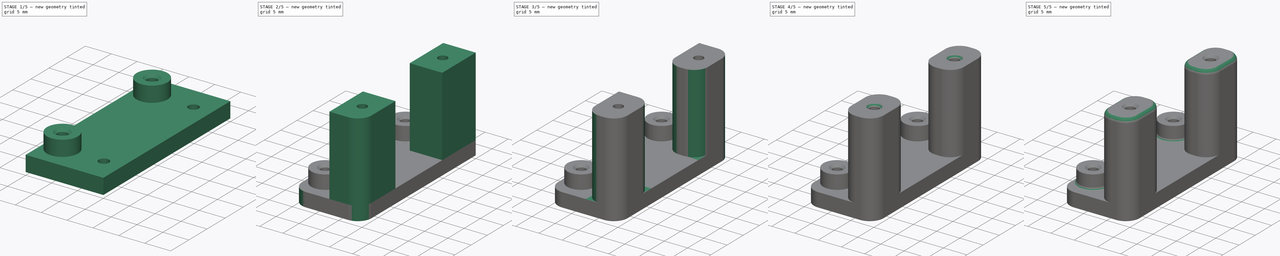
[diagram: build sequence overview — one tinted view per stage of 5, left to right]
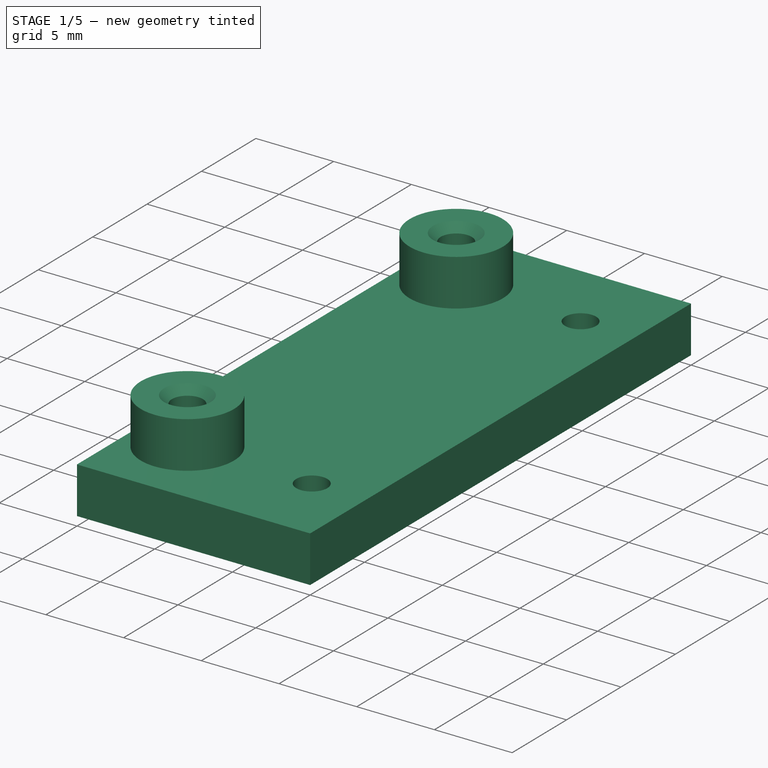
[diagram: stage 1 of 5 — iso view after this stage's code; geometry added in this stage tinted green]
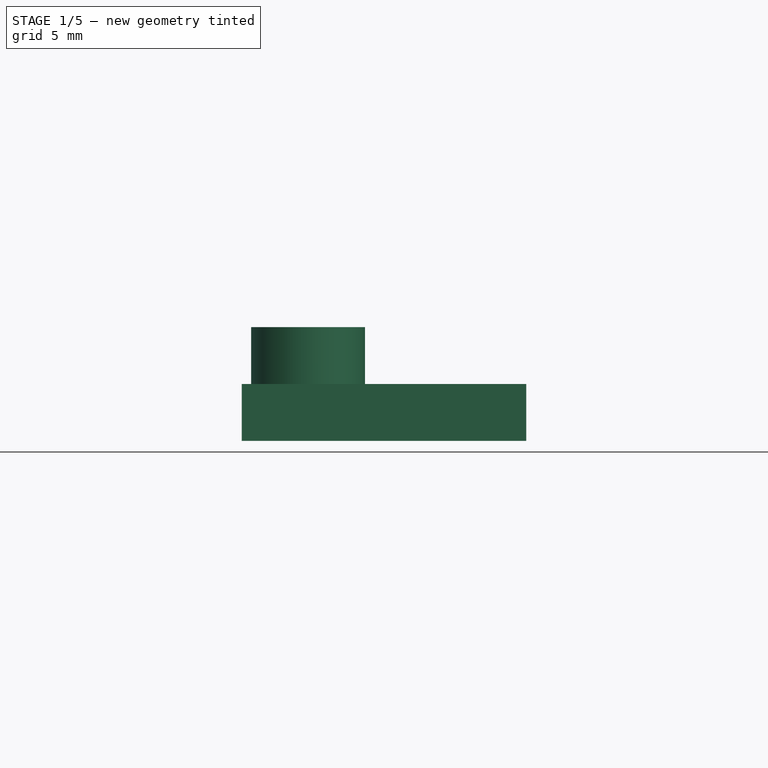
[diagram: stage 1 of 5 — front view after this stage's code; geometry added in this stage tinted green]
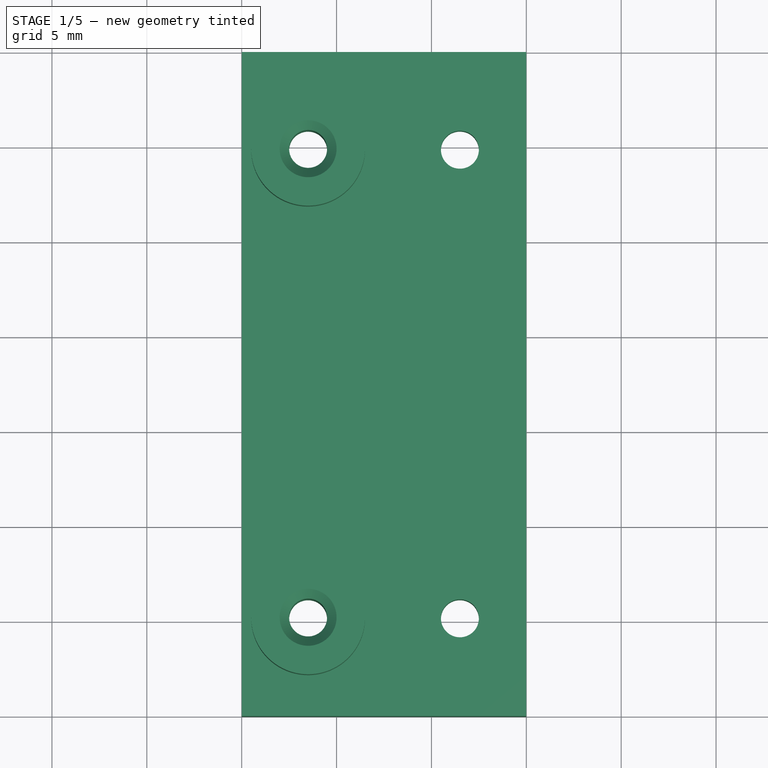
[diagram: stage 1 of 5 — top view after this stage's code; geometry added in this stage tinted green]
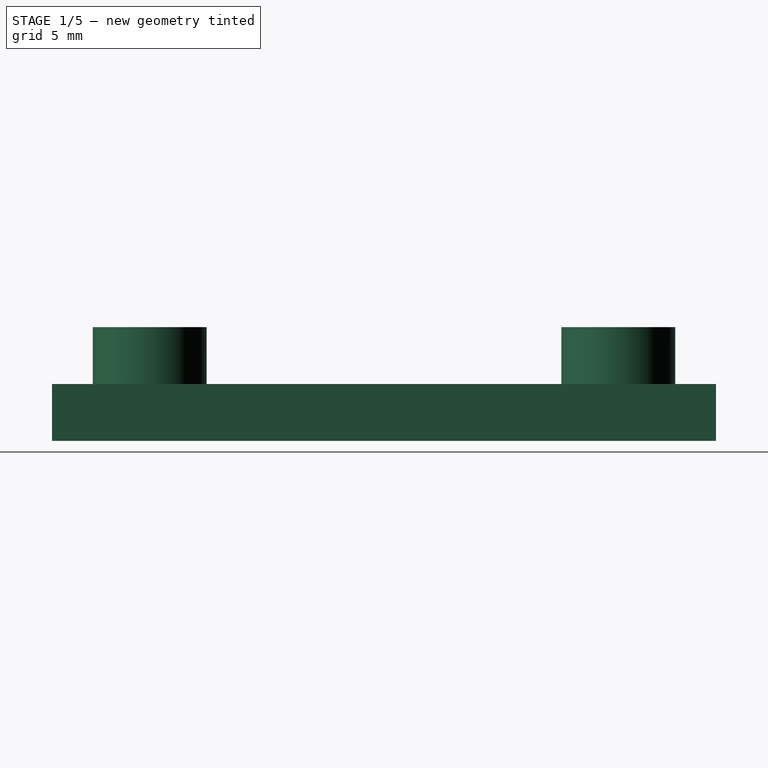
[diagram: stage 1 of 5 — right view after this stage's code; geometry added in this stage tinted green]
FCSTD DOCUMENT  (FreeCAD 0.14R3637 (Git))
Label: halter_controller
License: CC-BY 3.0
LicenseURL: http://creativecommons.org/licenses/by/3.0/
objects: PartDesign::Fillet×14, PartDesign::Chamfer×4, Sketcher::SketchObject×3, PartDesign::Pad×3
note: 27 computed .brp shape members not serialized (recipe doc carries the construction recipe); baked Part::Feature solids carry a one-line shape summary decoded from their .brp

FEATURE [Sketcher::SketchObject] Sketch  label="Base"
  sketch-geometry (19):
    g0: LineSegment StartX=0 StartY=0 StartZ=0 EndX=15 EndY=0 EndZ=0
    g1: LineSegment StartX=15 StartY=0 StartZ=0 EndX=15 EndY=35 EndZ=0
    g2: LineSegment StartX=15 StartY=35 StartZ=0 EndX=0 EndY=35 EndZ=0
    g3: LineSegment StartX=0 StartY=35 StartZ=0 EndX=0 EndY=0 EndZ=0
    g4: LineSegment [constr] StartX=0 StartY=29.85 StartZ=0 EndX=3.5 EndY=29.85 EndZ=0
    g5: LineSegment [constr] StartX=3.5 StartY=35 StartZ=0 EndX=3.5 EndY=29.85 EndZ=0
    g6: LineSegment [constr] StartX=0 StartY=5.15 StartZ=0 EndX=3.5 EndY=5.15 EndZ=0
    g7: LineSegment [constr] StartX=3.5 StartY=5.15 StartZ=0 EndX=3.5 EndY=29.85 EndZ=0
    g8: LineSegment [constr] StartX=3.5 StartY=5.15 StartZ=0 EndX=3.5 EndY=0 EndZ=0
    g9: LineSegment [constr] StartX=11.5 StartY=35 StartZ=0 EndX=11.5 EndY=29.85 EndZ=0
    g10: LineSegment [constr] StartX=11.5 StartY=29.85 StartZ=0 EndX=11.5 EndY=5.15 EndZ=0
    g11: LineSegment [constr] StartX=11.5 StartY=5.15 StartZ=0 EndX=11.5 EndY=0 EndZ=0
    g12: LineSegment [constr] StartX=11.5 StartY=29.85 StartZ=0 EndX=15 EndY=29.85 EndZ=0
    g13: LineSegment [constr] StartX=11.5 StartY=5.15 StartZ=0 EndX=15 EndY=5.15 EndZ=0
    g14: LineSegment [constr] StartX=3.5 StartY=29.85 StartZ=0 EndX=11.5 EndY=29.85 EndZ=0
    g15: Circle CenterX=11.5 CenterY=29.85 CenterZ=0 NormalX=0 NormalY=0 NormalZ=1 Radius=1
    g16: Circle CenterX=11.5 CenterY=5.15 CenterZ=0 NormalX=0 NormalY=0 NormalZ=1 Radius=1
    g17: Circle CenterX=3.5 CenterY=29.85 CenterZ=0 NormalX=0 NormalY=0 NormalZ=1 Radius=1
    g18: Circle CenterX=3.5 CenterY=5.15 CenterZ=0 NormalX=0 NormalY=0 NormalZ=1 Radius=1
  constraints (53):
    c: Coincident(g0,g1)
    c: Coincident(g1,g2)
    c: Coincident(g2,g3)
    c: Coincident(g3,g0)
    c: Horizontal(g0)
    c: Horizontal(g2)
    c: Vertical(g1)
    c: Vertical(g3)
    c: DistanceX(g2) = -15
    c: DistanceY(g1) = 35
    c: Coincident(g0,g-1)
    c: Coincident(g5,g4)
    c: Coincident(g6,g7)
    c: Vertical(g7)
    c: Coincident(g8,g6)
    c: Coincident(g7,g4)
    c: Vertical(g5)
    c: Vertical(g8)
    c: Horizontal(g6)
    c: Horizontal(g4)
    c: PointOnObject(g4,g3)
    c: PointOnObject(g6,g3)
    c: PointOnObject(g5,g2)
    c: PointOnObject(g8,g0)
    c: Equal(g5,g8)
    c: Coincident(g9,g10)
    c: Vertical(g10)
    c: Coincident(g10,g11)
    c: Coincident(g12,g9)
    c: Coincident(g10,g13)
    c: PointOnObject(g12,g1)
    c: PointOnObject(g13,g1)
    c: PointOnObject(g11,g0)
    c: PointOnObject(g9,g2)
    c: Equal(g9,g11)
    c: Horizontal(g12)
    c: Horizontal(g13)
    c: Vertical(g9)
    c: Vertical(g11)
    c: Coincident(g14,g4)
    c: Coincident(g14,g9)
    c: Horizontal(g14)
    c: DistanceX(g14) = 8
    c: DistanceY(g10) = -24.7
    c: Equal(g4,g12)
    c: Coincident(g15,g9)
    c: Coincident(g16,g10)
    c: Radius(g16) = 1
    c: Radius(g15) = 1
    c: Coincident(g17,g4)
    c: Coincident(g18,g6)
    c: Radius(g18) = 1
    c: Radius(g17) = 1
FEATURE [PartDesign::Pad] Pad
  Length = 3
  Length2 = 100
  Sketch = -> Sketch
  Type = 0
FEATURE [Sketcher::SketchObject] Sketch001  label="bolzen"
  ExternalGeometry = -> [Pad]
  Placement = pos=(0,0,3) rot=(0,0,1;0rad)
  Support = -> Pad [Face10]
  sketch-geometry (4):
    g0: Circle CenterX=3.5 CenterY=29.85 CenterZ=0 NormalX=0 NormalY=0 NormalZ=1 Radius=3
    g1: Circle CenterX=3.5 CenterY=5.15 CenterZ=0 NormalX=0 NormalY=0 NormalZ=1 Radius=3
    g2: Circle CenterX=3.5 CenterY=29.85 CenterZ=0 NormalX=0 NormalY=0 NormalZ=1 Radius=1
    g3: Circle CenterX=3.5 CenterY=5.15 CenterZ=0 NormalX=0 NormalY=0 NormalZ=1 Radius=1
  constraints (8):
    c: Coincident(g0,g-3)
    c: Radius(g0) = 3
    c: Coincident(g1,g-4)
    c: Radius(g1) = 3
    c: Coincident(g2,g0)
    c: Radius(g2) = 1
    c: Coincident(g3,g1)
    c: Radius(g3) = 1
FEATURE [PartDesign::Pad] Pad001
  Length = 3
  Length2 = 100
  Sketch = -> Sketch001
  Type = 0
FEATURE [PartDesign::Chamfer] Chamfer
  Base = -> Pad001 [Edge34]
  Size = 0.5
FEATURE [PartDesign::Chamfer] Chamfer001
  Base = -> Chamfer [Edge34]
  Size = 0.5
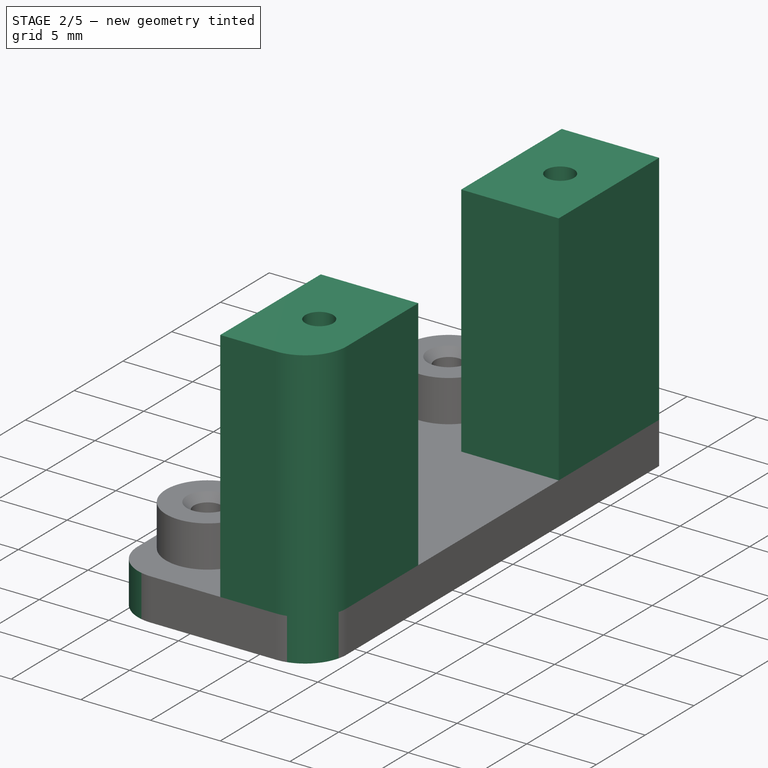
[diagram: stage 2 of 5 — iso view after this stage's code; geometry added in this stage tinted green]
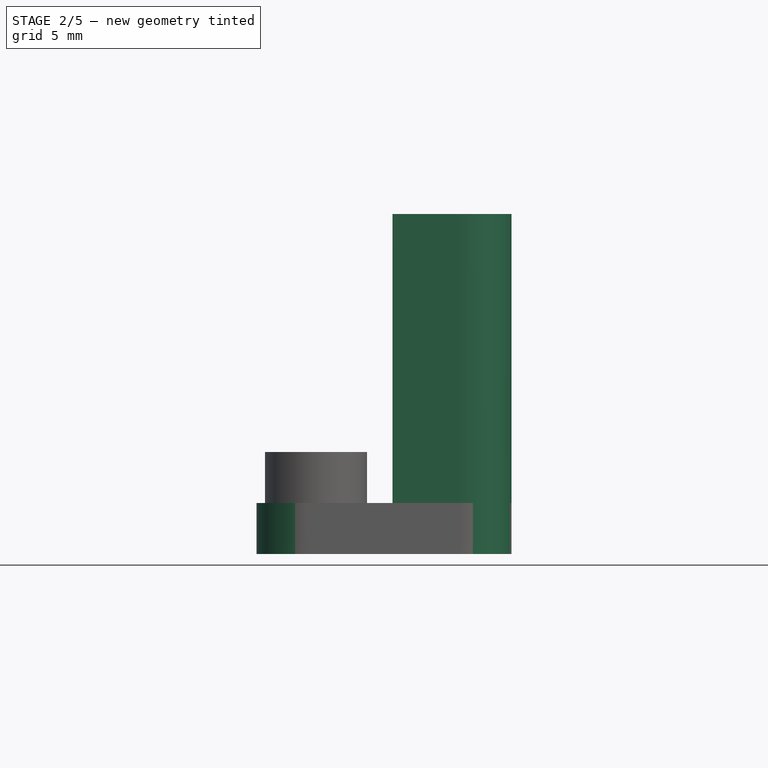
[diagram: stage 2 of 5 — front view after this stage's code; geometry added in this stage tinted green]
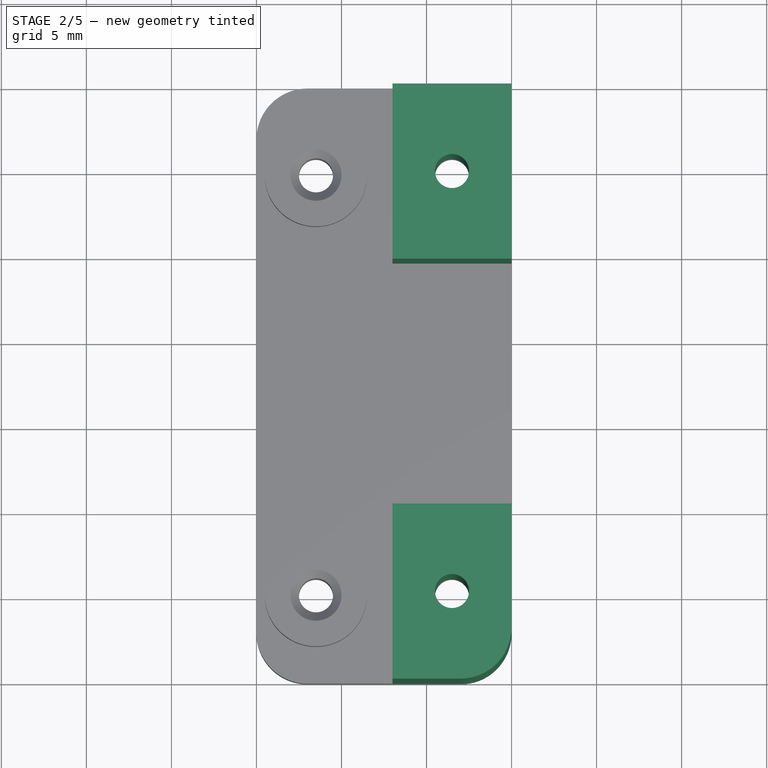
[diagram: stage 2 of 5 — top view after this stage's code; geometry added in this stage tinted green]
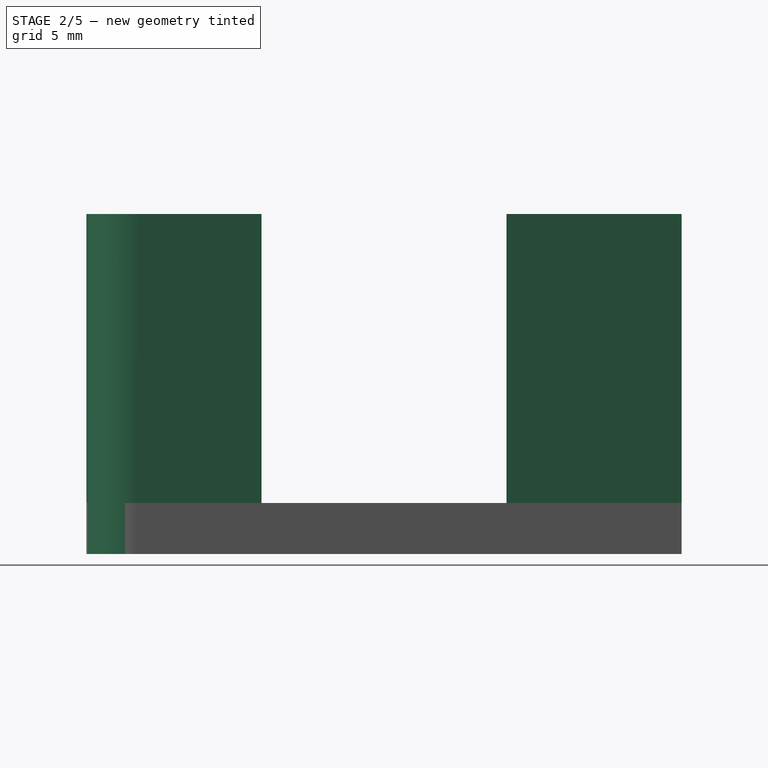
[diagram: stage 2 of 5 — right view after this stage's code; geometry added in this stage tinted green]
FEATURE [Sketcher::SketchObject] Sketch002  label="Abstandshalter"
  ExternalGeometry = -> [Chamfer001]
  Placement = pos=(0,0,3) rot=(0,0,1;0rad)
  Support = -> Chamfer001 [Face14]
  sketch-geometry (18):
    g0: Circle CenterX=11.5 CenterY=29.85 CenterZ=0 NormalX=0 NormalY=0 NormalZ=1 Radius=1
    g1: Circle CenterX=11.5 CenterY=5.15 CenterZ=0 NormalX=0 NormalY=0 NormalZ=1 Radius=1
    g2: LineSegment [constr] StartX=11.5 StartY=29.85 StartZ=0 EndX=15 EndY=29.85 EndZ=0
    g3: LineSegment [constr] StartX=11.5 StartY=29.85 StartZ=0 EndX=8 EndY=29.85 EndZ=0
    g4: LineSegment StartX=8 StartY=35 StartZ=0 EndX=15 EndY=35 EndZ=0
    g5: LineSegment StartX=15 StartY=35 StartZ=0 EndX=15 EndY=24.7 EndZ=0
    g6: LineSegment StartX=15 StartY=24.7 StartZ=0 EndX=8 EndY=24.7 EndZ=0
    g7: LineSegment StartX=8 StartY=24.7 StartZ=0 EndX=8 EndY=35 EndZ=0
    g8: LineSegment [constr] StartX=11.5 StartY=35 StartZ=0 EndX=11.5 EndY=29.85 EndZ=0
    g9: LineSegment [constr] StartX=11.5 StartY=29.85 StartZ=0 EndX=11.5 EndY=24.7 EndZ=0
    g10: LineSegment StartX=8 StartY=10.3 StartZ=0 EndX=15 EndY=10.3 EndZ=0
    g11: LineSegment StartX=15 StartY=10.3 StartZ=0 EndX=15 EndY=0 EndZ=0
    g12: LineSegment StartX=15 StartY=0 StartZ=0 EndX=8 EndY=0 EndZ=0
    g13: LineSegment StartX=8 StartY=0 StartZ=0 EndX=8 EndY=10.3 EndZ=0
    g14: LineSegment [constr] StartX=11.5 StartY=10.3 StartZ=0 EndX=11.5 EndY=5.15 EndZ=0
    g15: LineSegment [constr] StartX=11.5 StartY=5.15 StartZ=0 EndX=11.5 EndY=0 EndZ=0
    g16: LineSegment [constr] StartX=8 StartY=5.15 StartZ=0 EndX=11.5 EndY=5.15 EndZ=0
    g17: LineSegment [constr] StartX=11.5 StartY=5.15 StartZ=0 EndX=15 EndY=5.15 EndZ=0
  constraints (50):
    c: Coincident(g0,g-6)
    c: Radius(g0) = 1
    c: Coincident(g1,g-5)
    c: Radius(g1) = 1
    c: Coincident(g2,g0)
    c: Horizontal(g2)
    c: Coincident(g3,g0)
    c: Horizontal(g3)
    c: Equal(g3,g2)
    c: Coincident(g4,g5)
    c: Coincident(g5,g6)
    c: Coincident(g6,g7)
    c: Coincident(g7,g4)
    c: Horizontal(g4)
    c: Horizontal(g6)
    c: Vertical(g5)
    c: Vertical(g7)
    c: PointOnObject(g3,g7)
    c: PointOnObject(g2,g5)
    c: Coincident(g8,g9)
    c: PointOnObject(g8,g4)
    c: PointOnObject(g9,g6)
    c: Coincident(g8,g0)
    c: Vertical(g9)
    c: Vertical(g8)
    c: Equal(g8,g9)
    c: Coincident(g4,g-3)
    c: Coincident(g10,g11)
    c: Coincident(g11,g12)
    c: Coincident(g12,g13)
    c: Coincident(g13,g10)
    c: Horizontal(g10)
    c: Horizontal(g12)
    c: Vertical(g11)
    c: Vertical(g13)
    c: Coincident(g14,g15)
    c: Coincident(g16,g17)
    c: Coincident(g14,g1)
    c: Coincident(g1,g16)
    c: PointOnObject(g14,g10)
    c: PointOnObject(g15,g12)
    c: PointOnObject(g16,g13)
    c: PointOnObject(g17,g11)
    c: Horizontal(g16)
    c: Horizontal(g17)
    c: Vertical(g14)
    c: Vertical(g15)
    c: Equal(g14,g15)
    c: Equal(g17,g16)
    c: Coincident(g11,g-3)
FEATURE [PartDesign::Pad] Pad002
  Length = 17
  Length2 = 100
  Sketch = -> Sketch002
  Type = 0
FEATURE [PartDesign::Fillet] Fillet
  Base = -> Pad002 [Edge18]
  Radius = 3
FEATURE [PartDesign::Fillet] Fillet001
  Base = -> Fillet [Edge20]
  Radius = 3
FEATURE [PartDesign::Fillet] Fillet002
  Base = -> Fillet001 [Edge44]
  Radius = 3
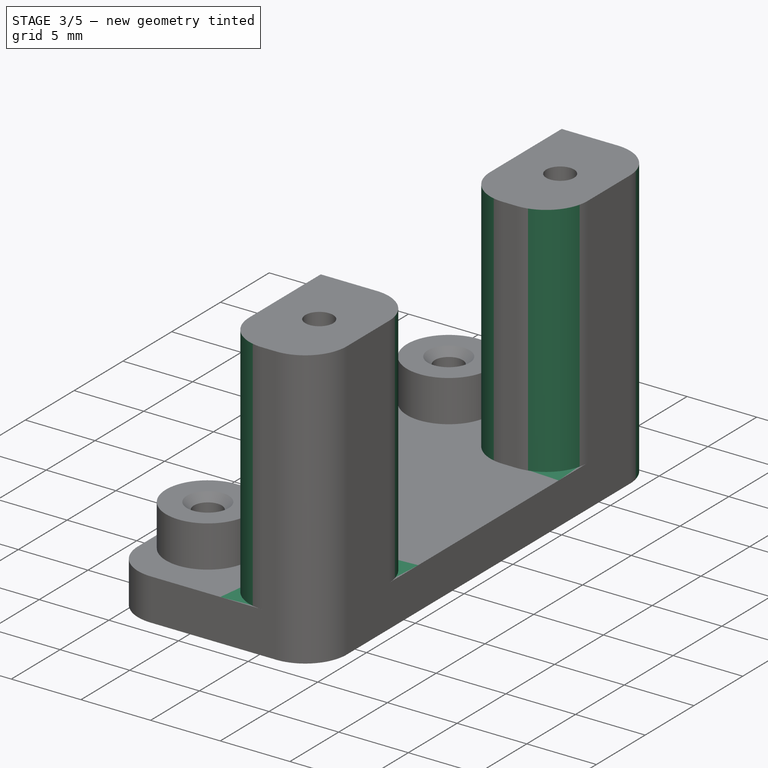
[diagram: stage 3 of 5 — iso view after this stage's code; geometry added in this stage tinted green]
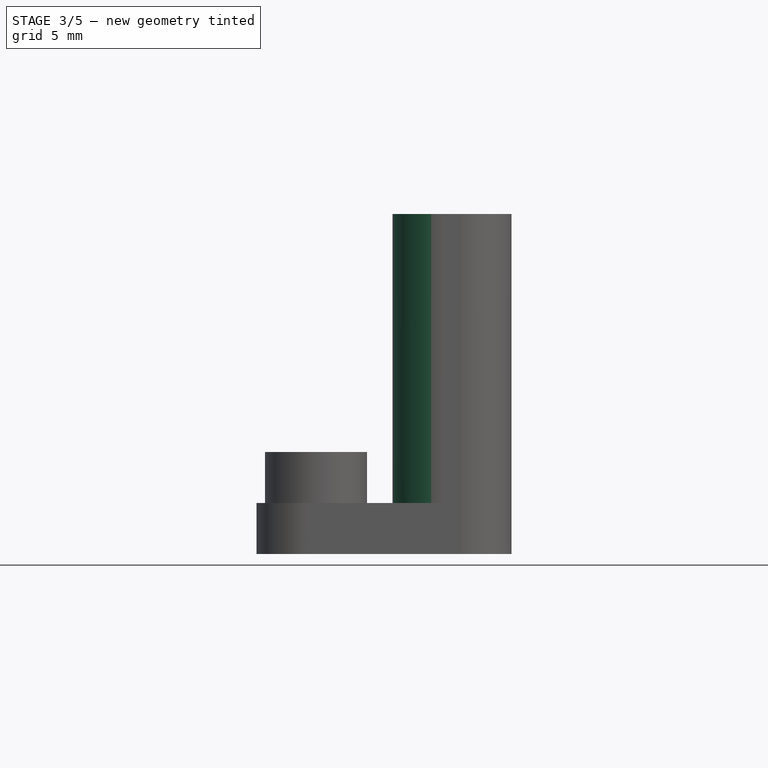
[diagram: stage 3 of 5 — front view after this stage's code; geometry added in this stage tinted green]
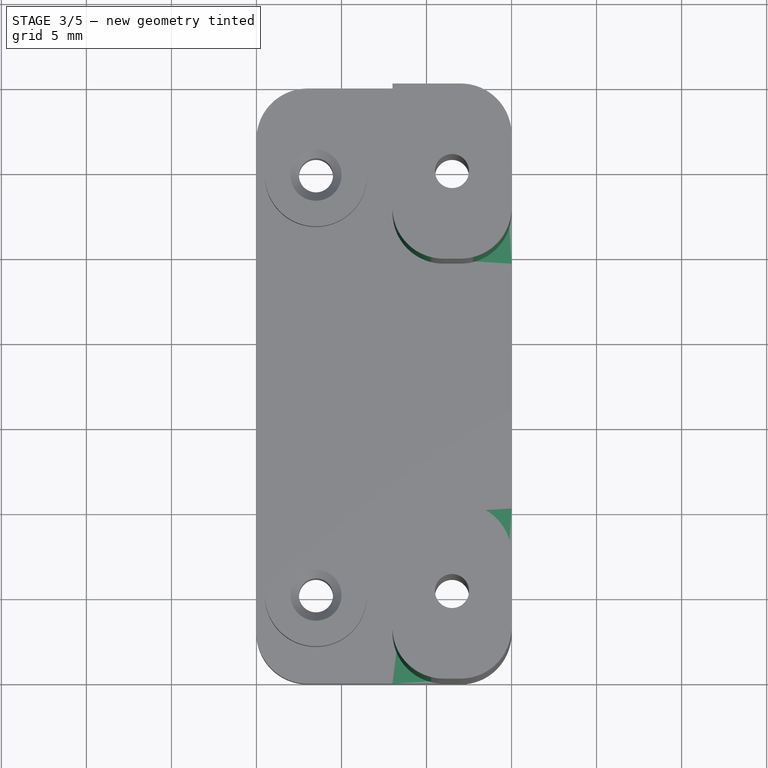
[diagram: stage 3 of 5 — top view after this stage's code; geometry added in this stage tinted green]
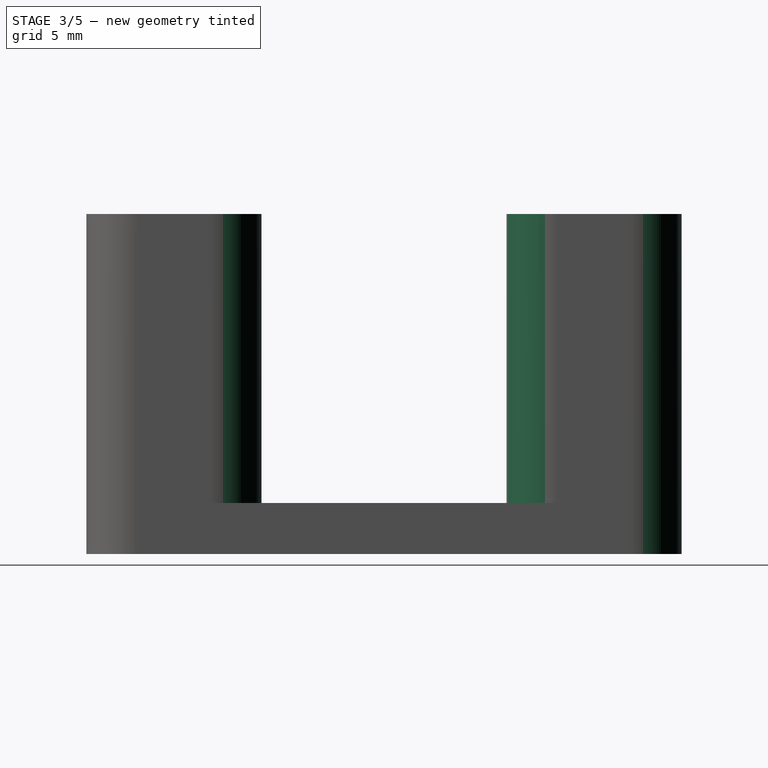
[diagram: stage 3 of 5 — right view after this stage's code; geometry added in this stage tinted green]
FEATURE [PartDesign::Fillet] Fillet003
  Base = -> Fillet002 [Edge51]
  Radius = 3
FEATURE [PartDesign::Fillet] Fillet004
  Base = -> Fillet003 [Edge42]
  Radius = 3
FEATURE [PartDesign::Fillet] Fillet005
  Base = -> Fillet004 [Edge37]
  Radius = 3
FEATURE [PartDesign::Fillet] Fillet006
  Base = -> Fillet005 [Edge52]
  Radius = 3
FEATURE [PartDesign::Fillet] Fillet007
  Base = -> Fillet006 [Edge49]
  Radius = 3
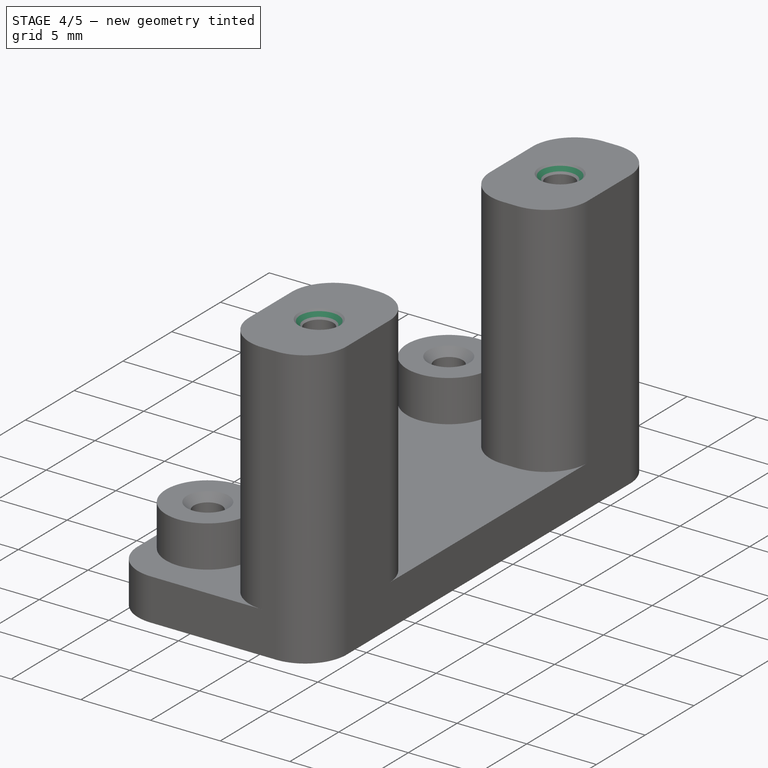
[diagram: stage 4 of 5 — iso view after this stage's code; geometry added in this stage tinted green]
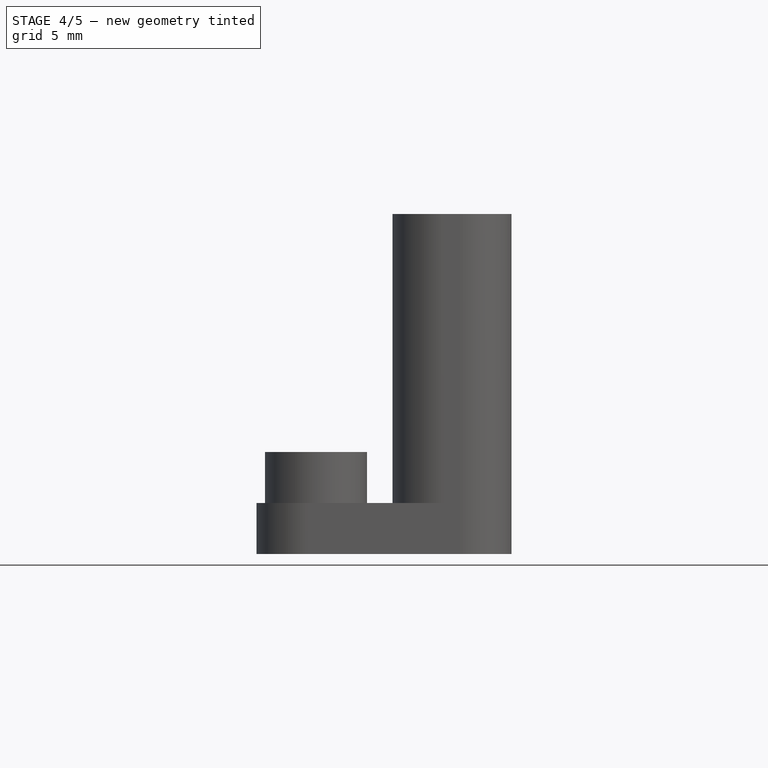
[diagram: stage 4 of 5 — front view after this stage's code; geometry added in this stage tinted green]
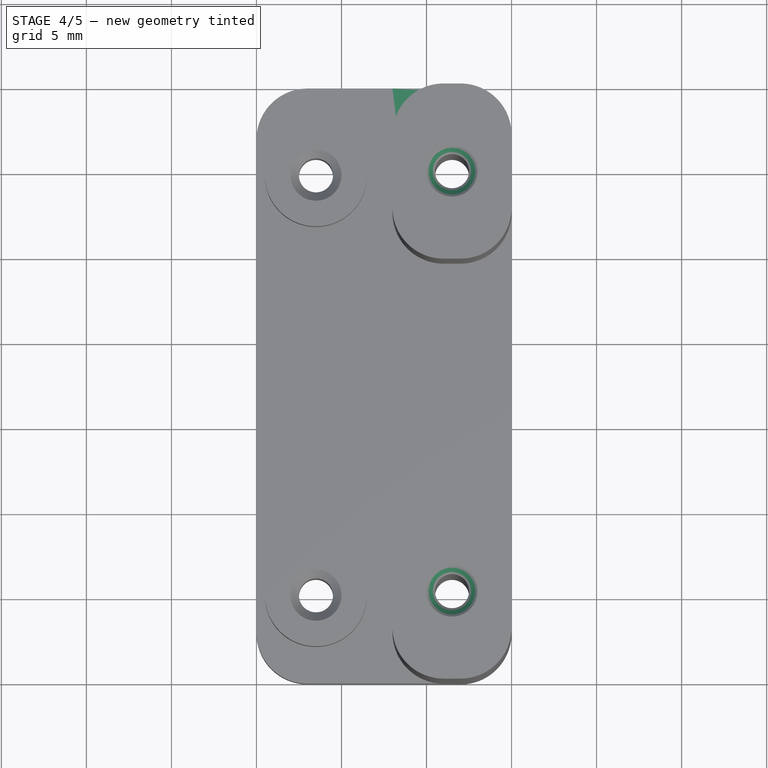
[diagram: stage 4 of 5 — top view after this stage's code; geometry added in this stage tinted green]
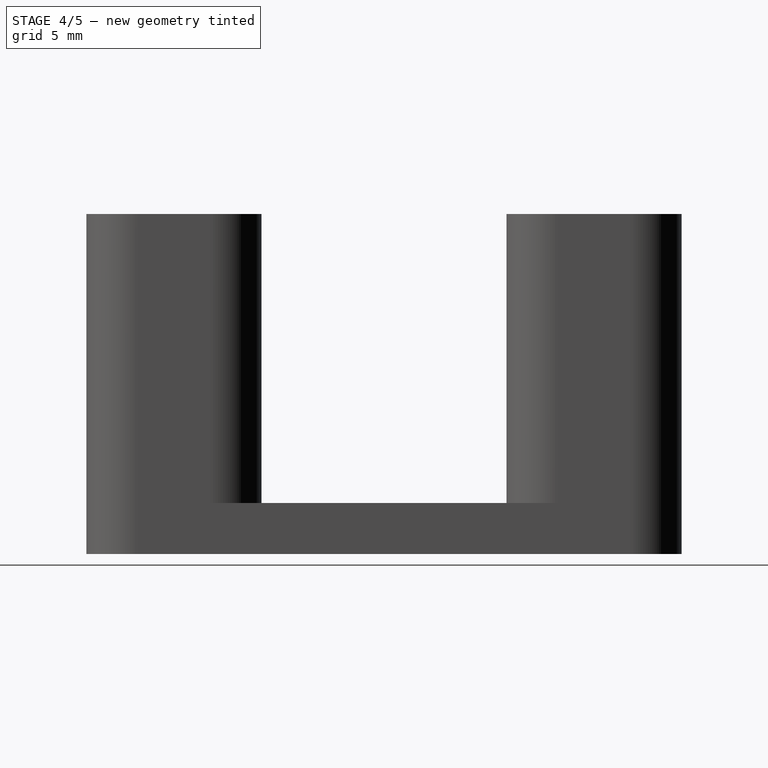
[diagram: stage 4 of 5 — right view after this stage's code; geometry added in this stage tinted green]
FEATURE [PartDesign::Fillet] Fillet008
  Base = -> Fillet007 [Edge47]
  Radius = 3
FEATURE [PartDesign::Fillet] Fillet009
  Base = -> Fillet008 [Edge54]
  Radius = 3
FEATURE [PartDesign::Chamfer] Chamfer002
  Base = -> Fillet009 [Edge70]
  Size = 0.5
FEATURE [PartDesign::Chamfer] Chamfer003
  Base = -> Chamfer002 [Edge91]
  Size = 0.5
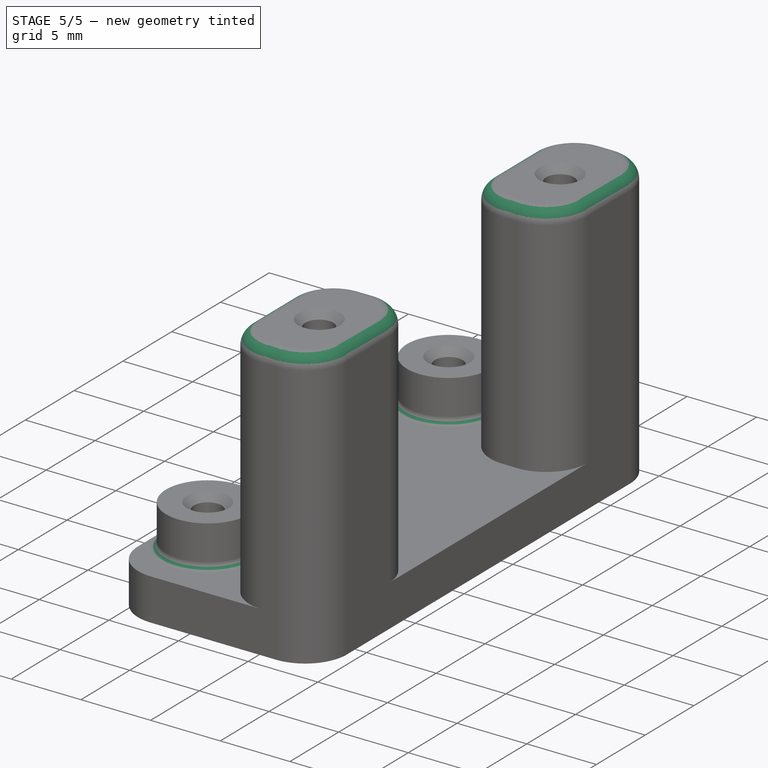
[diagram: stage 5 of 5 — iso view after this stage's code; geometry added in this stage tinted green]
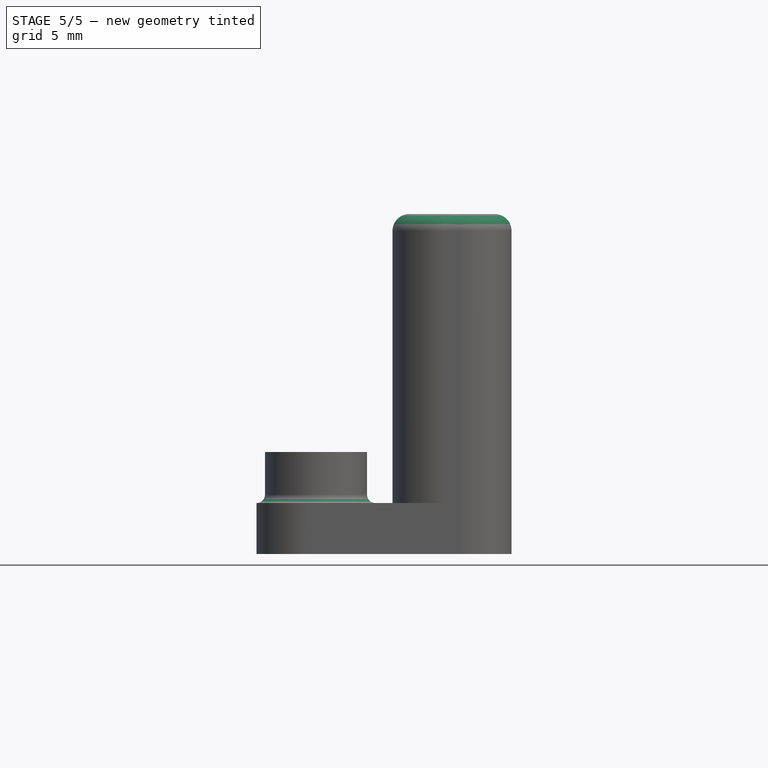
[diagram: stage 5 of 5 — front view after this stage's code; geometry added in this stage tinted green]
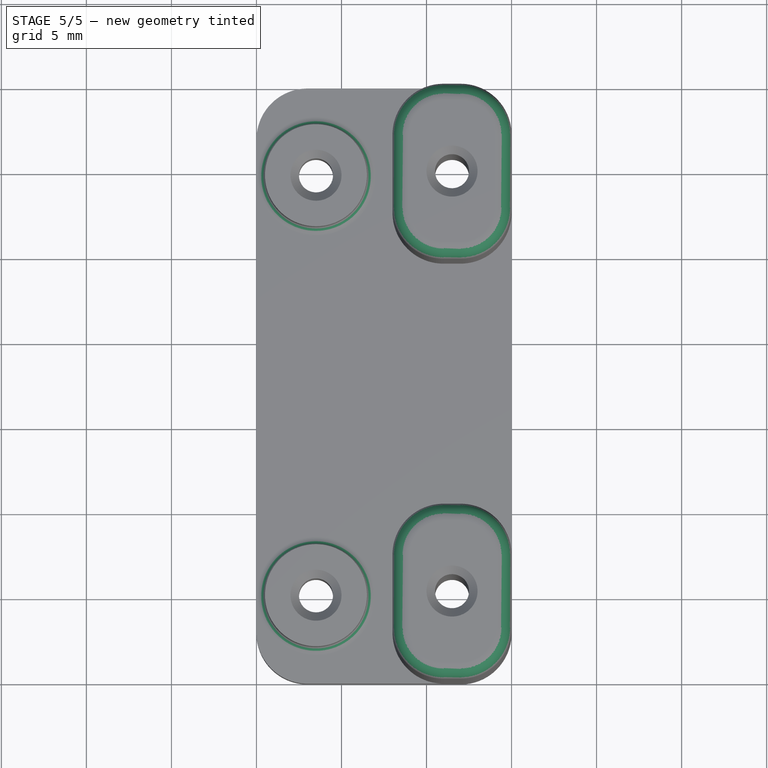
[diagram: stage 5 of 5 — top view after this stage's code; geometry added in this stage tinted green]
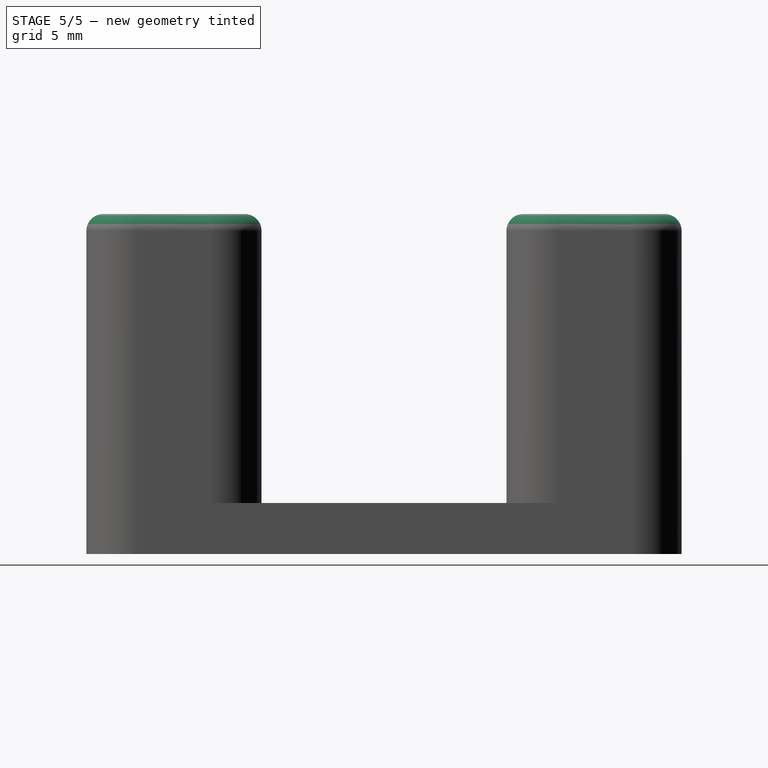
[diagram: stage 5 of 5 — right view after this stage's code; geometry added in this stage tinted green]
FEATURE [PartDesign::Fillet] Fillet010
  Base = -> Chamfer003 [Edge46]
  Radius = 0.5
FEATURE [PartDesign::Fillet] Fillet011
  Base = -> Fillet010 [Edge22]
  Radius = 0.5
FEATURE [PartDesign::Fillet] Fillet012
  Base = -> Fillet011 [Edge85]
  Radius = 1
FEATURE [PartDesign::Fillet] Fillet013
  Base = -> Fillet012 [Edge94]
  Radius = 1
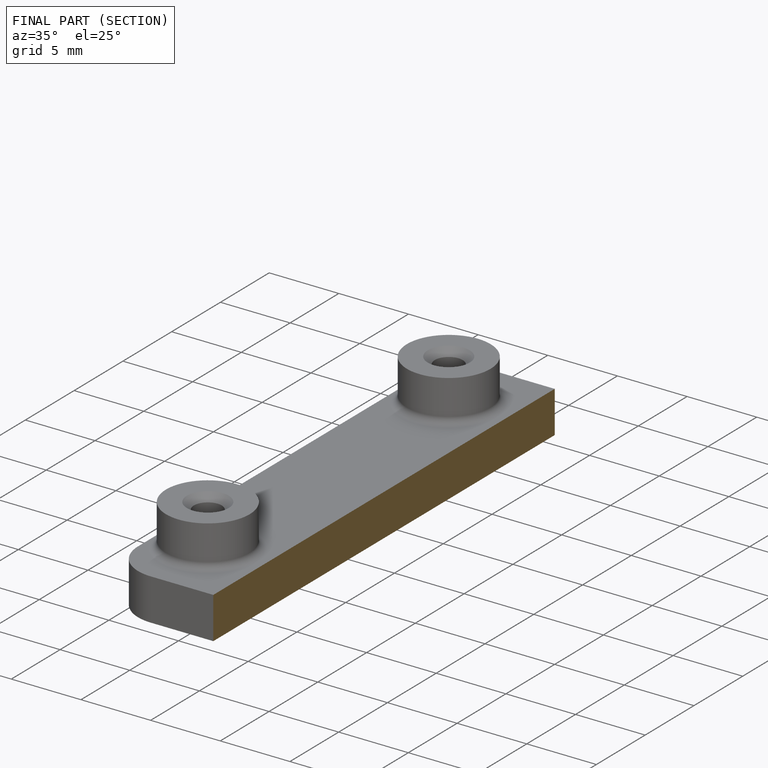
[diagram: finished part — half-section view (interior)]
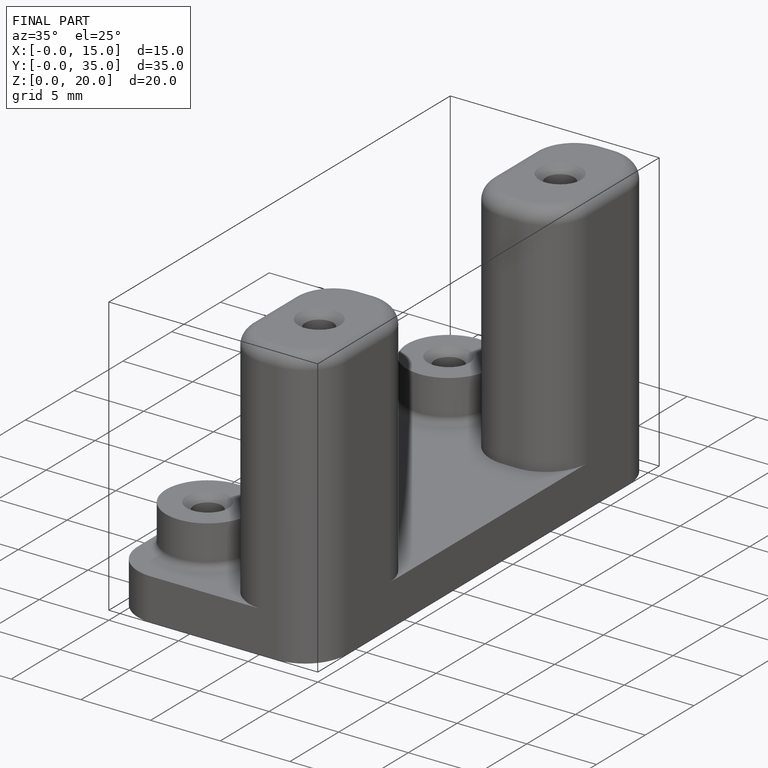
[diagram: finished part — iso view with bounding-box wireframe]
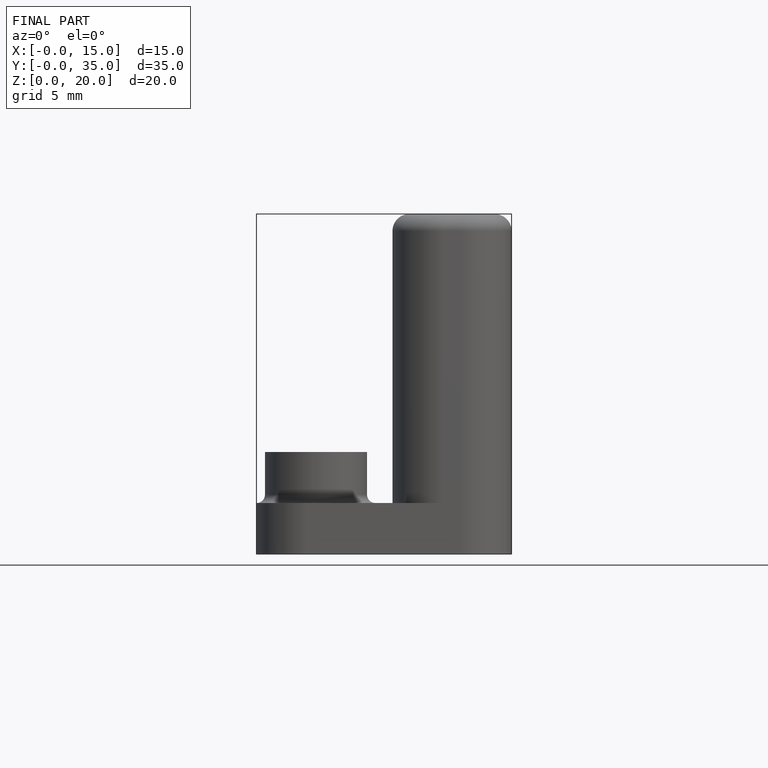
[diagram: finished part — front view with bounding-box wireframe]
